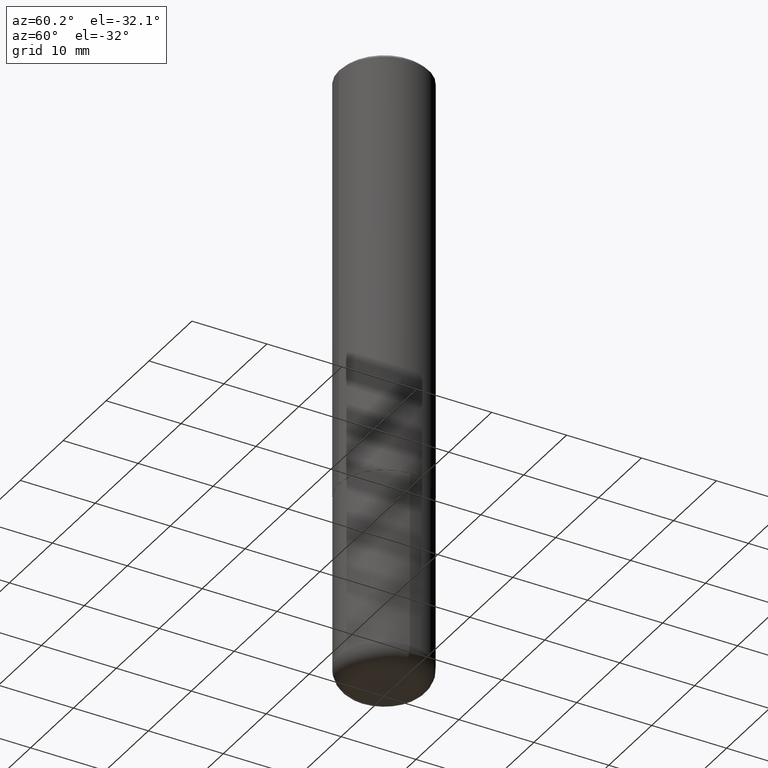
[diagram: clean part render]
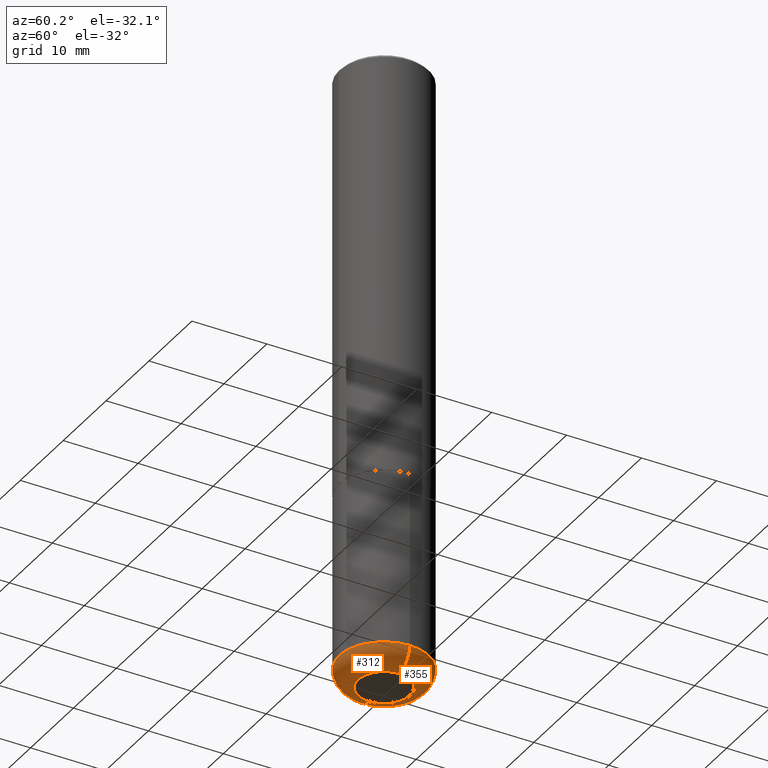
[diagram: same view with one multi-face feature highlighted, each face labeled with its STEP entity id]
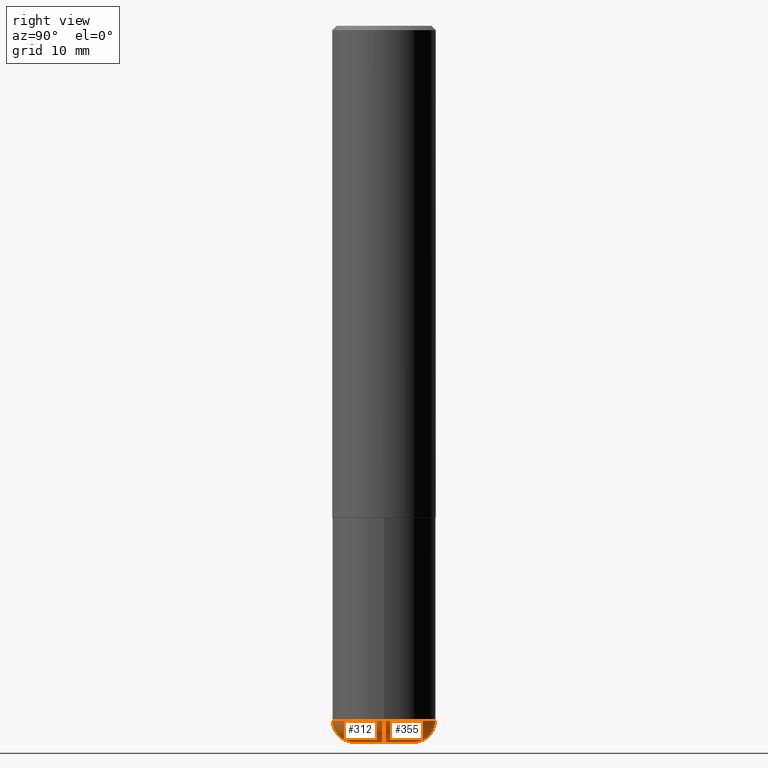
[diagram: same view with one multi-face feature highlighted, each face labeled with its STEP entity id]
A machine part, auxiliary view. The highlighted faces form ONE feature: a constant-radius fillet chain: 2 tangent blend faces with common blend radius 2.4994 mm. The faces share edges in the B-rep.
A second angle (right view) of the same feature is appended — it is thin or edge-on in the first view.
Their STEP definitions:
[1] entity #312 (Torus):
#4 = CIRCLE ( 'NONE', #185, 0.09840000000000014013 ) ;
#36 = CARTESIAN_POINT ( 'NONE',  ( 0.1378000000000000058, -1.237136582792291392E-14, -3.267700000000000049 ) ) ;
#37 = CARTESIAN_POINT ( 'NONE',  ( 7.750424287442554569E-29, -1.106555180719558034E-14, -3.169299999999999784 ) ) ;
#45 = EDGE_CURVE ( 'NONE', #73, #118, #4, .T. ) ;
#49 = DIRECTION ( 'NONE',  ( -6.982962677686266711E-15, -1.000000000000000000, 3.491481338843145583E-15 ) ) ;
#51 = CIRCLE ( 'NONE', #120, 0.1378000000000000058 ) ;
#62 = FACE_OUTER_BOUND ( 'NONE', #328, .T. ) ;
#73 = VERTEX_POINT ( 'NONE', #216 ) ;
#77 = AXIS2_PLACEMENT_3D ( 'NONE', #37, #100, #382 ) ;
#85 = VERTEX_POINT ( 'NONE', #347 ) ;
#95 = CARTESIAN_POINT ( 'NONE',  ( 7.750424287442554569E-29, -1.106555180719558034E-14, -3.169299999999999784 ) ) ;
#99 = EDGE_CURVE ( 'NONE', #73, #353, #51, .T. ) ;
#100 = DIRECTION ( 'NONE',  ( -2.445468806185136597E-29, 3.491481338843145583E-15, 1.000000000000000000 ) ) ;
#107 = DIRECTION ( 'NONE',  ( 7.105427357601001859E-15, 1.000000000000000000, -3.491481338843145583E-15 ) ) ;
#118 = VERTEX_POINT ( 'NONE', #366 ) ;
#120 = AXIS2_PLACEMENT_3D ( 'NONE', #332, #224, #381 ) ;
#153 = ORIENTED_EDGE ( 'NONE', *, *, #198, .T. ) ;
#154 = AXIS2_PLACEMENT_3D ( 'NONE', #95, #158, #413 ) ;
#158 = DIRECTION ( 'NONE',  ( -2.445468806185136597E-29, 3.491481338843145583E-15, 1.000000000000000000 ) ) ;
#185 = AXIS2_PLACEMENT_3D ( 'NONE', #208, #107, #373 ) ;
#198 = EDGE_CURVE ( 'NONE', #353, #85, #231, .T. ) ;
#199 = ORIENTED_EDGE ( 'NONE', *, *, #99, .T. ) ;
#205 = DIRECTION ( 'NONE',  ( 1.000000000000000000, -6.982962677686272233E-15, 0.000000000000000000 ) ) ;
#208 = CARTESIAN_POINT ( 'NONE',  ( -0.1378000000000000058, -1.008642391731816283E-14, -3.169299999999999784 ) ) ;
#216 = CARTESIAN_POINT ( 'NONE',  ( -0.1378000000000000058, -9.908617773195276440E-15, -3.267700000000000049 ) ) ;
#224 = DIRECTION ( 'NONE',  ( -2.445468806185136597E-29, 3.491481338843145583E-15, 1.000000000000000000 ) ) ;
#231 = CIRCLE ( 'NONE', #236, 0.09840000000000014013 ) ;
#236 = AXIS2_PLACEMENT_3D ( 'NONE', #299, #49, #205 ) ;
#263 = TOROIDAL_SURFACE ( 'NONE', #154, 0.1378000000000000058, 0.09840000000000012625 ) ;
#288 = ORIENTED_EDGE ( 'NONE', *, *, #45, .F. ) ;
#299 = CARTESIAN_POINT ( 'NONE',  ( 0.1378000000000000058, -1.202780406418074782E-14, -3.169299999999999784 ) ) ;
#312 = ADVANCED_FACE ( 'NONE', ( #62 ), #263, .T. ) ;
#328 = EDGE_LOOP ( 'NONE', ( #288, #199, #153, #401 ) ) ;
#332 = CARTESIAN_POINT ( 'NONE',  ( 7.991058417971171713E-29, -1.140911357093774644E-14, -3.267700000000000049 ) ) ;
#339 = CIRCLE ( 'NONE', #77, 0.2361999999999999933 ) ;
#347 = CARTESIAN_POINT ( 'NONE',  ( 0.2362000000000000766, -1.271492759166507844E-14, -3.169299999999999784 ) ) ;
#353 = VERTEX_POINT ( 'NONE', #36 ) ;
#365 = EDGE_CURVE ( 'NONE', #118, #85, #339, .T. ) ;
#366 = CARTESIAN_POINT ( 'NONE',  ( -0.2362000000000000766, -9.387249865330223945E-15, -3.169299999999999784 ) ) ;
#373 = DIRECTION ( 'NONE',  ( -1.000000000000000000, 7.105427357601008170E-15, 0.000000000000000000 ) ) ;
#381 = DIRECTION ( 'NONE',  ( 1.000000000000000000, -6.982962677686265922E-15, 0.000000000000000000 ) ) ;
#382 = DIRECTION ( 'NONE',  ( 1.000000000000000000, -6.982962677686265133E-15, 0.000000000000000000 ) ) ;
#401 = ORIENTED_EDGE ( 'NONE', *, *, #365, .F. ) ;
#413 = DIRECTION ( 'NONE',  ( 1.000000000000000000, -6.982962677686269077E-15, 4.883557194083113462E-29 ) ) ;
[2] entity #355 (Torus):
#4 = CIRCLE ( 'NONE', #185, 0.09840000000000014013 ) ;
#36 = CARTESIAN_POINT ( 'NONE',  ( 0.1378000000000000058, -1.237136582792291392E-14, -3.267700000000000049 ) ) ;
#39 = ORIENTED_EDGE ( 'NONE', *, *, #97, .T. ) ;
#45 = EDGE_CURVE ( 'NONE', #73, #118, #4, .T. ) ;
#49 = DIRECTION ( 'NONE',  ( -6.982962677686266711E-15, -1.000000000000000000, 3.491481338843145583E-15 ) ) ;
#73 = VERTEX_POINT ( 'NONE', #216 ) ;
#78 = CARTESIAN_POINT ( 'NONE',  ( 7.750424287442554569E-29, -1.106555180719558034E-14, -3.169299999999999784 ) ) ;
#81 = CARTESIAN_POINT ( 'NONE',  ( 7.991058417971171713E-29, -1.140911357093774644E-14, -3.267700000000000049 ) ) ;
#85 = VERTEX_POINT ( 'NONE', #347 ) ;
#88 = EDGE_CURVE ( 'NONE', #85, #118, #360, .T. ) ;
#92 = ORIENTED_EDGE ( 'NONE', *, *, #45, .T. ) ;
#97 = EDGE_CURVE ( 'NONE', #353, #73, #385, .T. ) ;
#101 = ORIENTED_EDGE ( 'NONE', *, *, #198, .F. ) ;
#107 = DIRECTION ( 'NONE',  ( 7.105427357601001859E-15, 1.000000000000000000, -3.491481338843145583E-15 ) ) ;
#118 = VERTEX_POINT ( 'NONE', #366 ) ;
#138 = DIRECTION ( 'NONE',  ( 1.000000000000000000, -6.982962677686265922E-15, 0.000000000000000000 ) ) ;
#185 = AXIS2_PLACEMENT_3D ( 'NONE', #208, #107, #373 ) ;
#189 = DIRECTION ( 'NONE',  ( -2.445468806185136597E-29, 3.491481338843145583E-15, 1.000000000000000000 ) ) ;
#190 = DIRECTION ( 'NONE',  ( 1.000000000000000000, -6.982962677686269077E-15, 4.883557194083113462E-29 ) ) ;
#192 = AXIS2_PLACEMENT_3D ( 'NONE', #342, #306, #190 ) ;
#194 = FACE_OUTER_BOUND ( 'NONE', #298, .T. ) ;
#198 = EDGE_CURVE ( 'NONE', #353, #85, #231, .T. ) ;
#205 = DIRECTION ( 'NONE',  ( 1.000000000000000000, -6.982962677686272233E-15, 0.000000000000000000 ) ) ;
#208 = CARTESIAN_POINT ( 'NONE',  ( -0.1378000000000000058, -1.008642391731816283E-14, -3.169299999999999784 ) ) ;
#216 = CARTESIAN_POINT ( 'NONE',  ( -0.1378000000000000058, -9.908617773195276440E-15, -3.267700000000000049 ) ) ;
#231 = CIRCLE ( 'NONE', #236, 0.09840000000000014013 ) ;
#236 = AXIS2_PLACEMENT_3D ( 'NONE', #299, #49, #205 ) ;
#237 = DIRECTION ( 'NONE',  ( 1.000000000000000000, -6.982962677686265133E-15, 0.000000000000000000 ) ) ;
#269 = AXIS2_PLACEMENT_3D ( 'NONE', #78, #189, #237 ) ;
#298 = EDGE_LOOP ( 'NONE', ( #39, #92, #300, #101 ) ) ;
#299 = CARTESIAN_POINT ( 'NONE',  ( 0.1378000000000000058, -1.202780406418074782E-14, -3.169299999999999784 ) ) ;
#300 = ORIENTED_EDGE ( 'NONE', *, *, #88, .F. ) ;
#302 = AXIS2_PLACEMENT_3D ( 'NONE', #81, #376, #138 ) ;
#306 = DIRECTION ( 'NONE',  ( -2.445468806185136597E-29, 3.491481338843145583E-15, 1.000000000000000000 ) ) ;
#342 = CARTESIAN_POINT ( 'NONE',  ( 7.750424287442554569E-29, -1.106555180719558034E-14, -3.169299999999999784 ) ) ;
#347 = CARTESIAN_POINT ( 'NONE',  ( 0.2362000000000000766, -1.271492759166507844E-14, -3.169299999999999784 ) ) ;
#353 = VERTEX_POINT ( 'NONE', #36 ) ;
#355 = ADVANCED_FACE ( 'NONE', ( #194 ), #372, .T. ) ;
#360 = CIRCLE ( 'NONE', #269, 0.2361999999999999933 ) ;
#366 = CARTESIAN_POINT ( 'NONE',  ( -0.2362000000000000766, -9.387249865330223945E-15, -3.169299999999999784 ) ) ;
#372 = TOROIDAL_SURFACE ( 'NONE', #192, 0.1378000000000000058, 0.09840000000000012625 ) ;
#373 = DIRECTION ( 'NONE',  ( -1.000000000000000000, 7.105427357601008170E-15, 0.000000000000000000 ) ) ;
#376 = DIRECTION ( 'NONE',  ( -2.445468806185136597E-29, 3.491481338843145583E-15, 1.000000000000000000 ) ) ;
#385 = CIRCLE ( 'NONE', #302, 0.1378000000000000058 ) ;